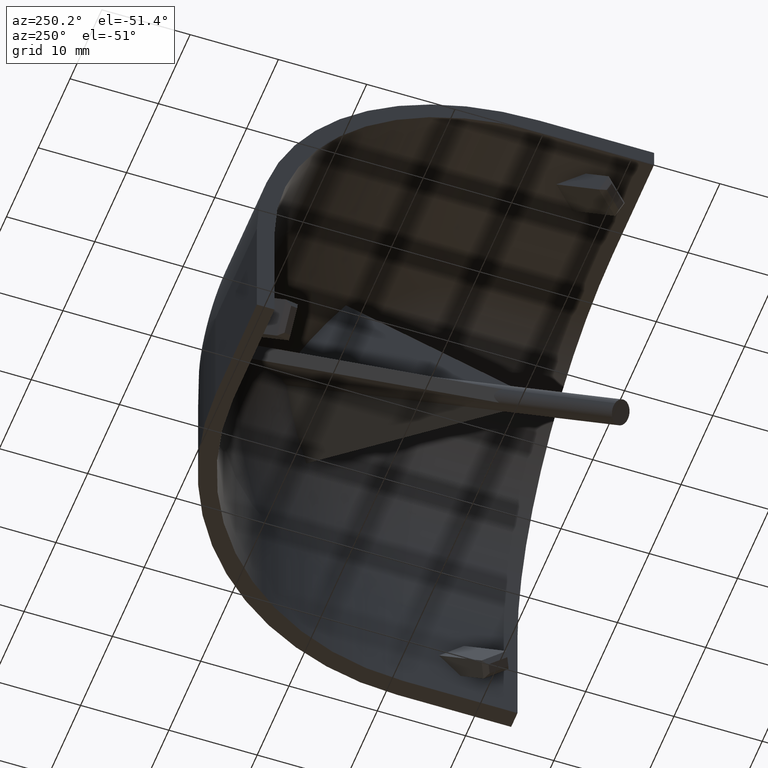
[diagram: clean part render]
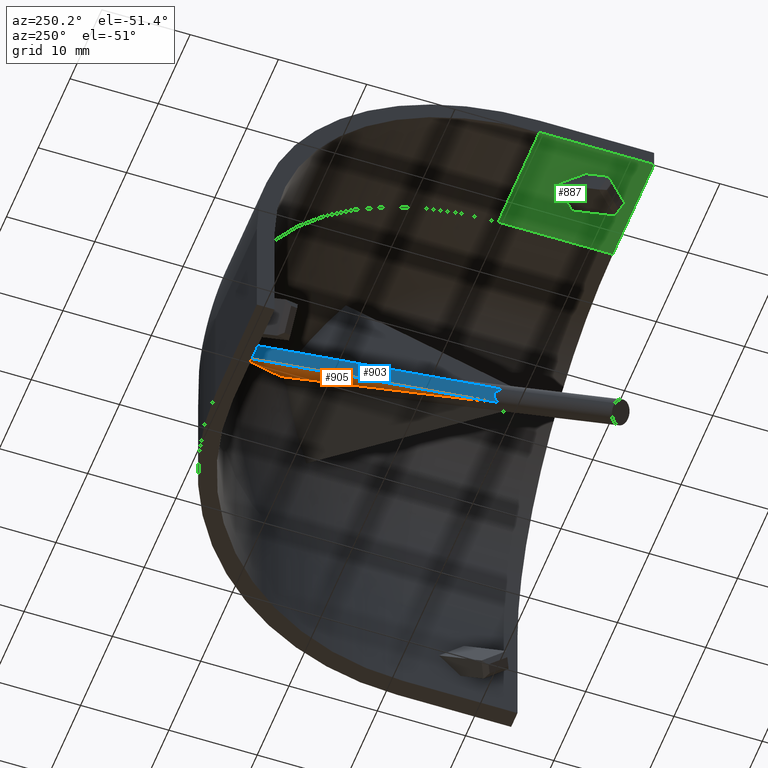
[diagram: same view with three faces highlighted in distinct colors, each labeled with its STEP entity id]
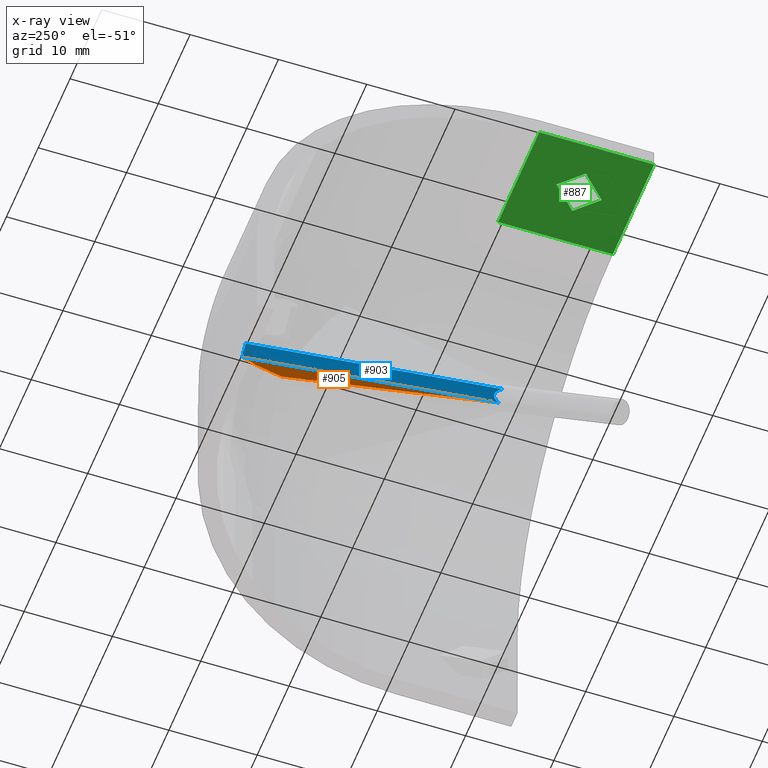
[diagram: x-ray of the same camera — body ghosted, the three highlighted faces saturated]
A machine part, auxiliary view with three faces highlighted in distinct colors.
The next image is the same camera in x-ray (body ghosted, the three faces saturated) — at least one of them is partly hidden behind the body in this view.
Their STEP definitions:

[orange] entity #905 — the highlighted planar face has unit normal (-0.7071, -0, 0.7071).
#35=PLANE($,#991);
#70=LINE($,#1300,#169);
#119=LINE($,#1451,#218);
#169=VECTOR($,#1029,31.3487743008794);
#218=VECTOR($,#1180,30.9555790635604);
#298=FACE_OUTER_BOUND($,#358,.T.);
#358=EDGE_LOOP($,(#760,#761,#762));
#401=CIRCLE($,#956,29.9906235346983);
#412=VERTEX_POINT($,#1296);
#414=VERTEX_POINT($,#1299);
#427=VERTEX_POINT($,#1327);
#492=EDGE_CURVE($,#412,#414,#70,.T.);
#514=EDGE_CURVE($,#427,#414,#401,.T.);
#567=EDGE_CURVE($,#412,#427,#119,.T.);
#760=ORIENTED_EDGE($,*,*,#567,.T.);
#761=ORIENTED_EDGE($,*,*,#514,.T.);
#762=ORIENTED_EDGE($,*,*,#492,.F.);
#905=ADVANCED_FACE($,(#298),#35,.F.);
#956=AXIS2_PLACEMENT_3D($,#1341,#1069,#1070);
#991=AXIS2_PLACEMENT_3D($,#1454,#1184,#1185);
#1029=DIRECTION($,(0.577350269189624,0.577350269189624,-0.57735026918963));
#1069=DIRECTION('center_axis',(0.707106781186543,-0.707106781186552,-1.30843890190042E-015));
#1070=DIRECTION('ref_axis',(-0.707106781186552,-0.707106781186543,3.52837385698756E-015));
#1180=DIRECTION($,(0.442898768224957,0.442898768224954,-0.779539198635729));
#1184=DIRECTION('center_axis',(-0.707106781186543,0.707106781186552,1.30843890190042E-015));
#1185=DIRECTION('ref_axis',(2.1316282072803E-015,0.,1.));
#1296=CARTESIAN_POINT('',(12.2501300915973,11.1894699023155,-13.1676432237397));
#1299=CARTESIAN_POINT('',(30.3493533652992,29.2886931935193,-31.2668665029666));
#1300=CARTESIAN_POINT($,(12.2501300768897,11.1894699051098,-13.1676432145569));
#1327=CARTESIAN_POINT('',(25.9603179193382,24.8996577475581,-37.298730520763));
#1341=CARTESIAN_POINT('Origin',(13.53033008589,12.46966991411,-13.));
#1451=CARTESIAN_POINT($,(12.2501300768897,11.1894699051098,-13.1676432145569));
#1454=CARTESIAN_POINT('Origin',(43.8326876228925,42.7720274511119,-29.7397525875473));

[blue] entity #903 — the highlighted planar face has unit normal (-0.5512, 0.6264, -0.5512).
#33=PLANE($,#989);
#119=LINE($,#1451,#218);
#120=LINE($,#1452,#219);
#218=VECTOR($,#1180,30.9555790635604);
#219=VECTOR($,#1181,30.955579075995);
#268=ELLIPSE($,#938,5.09339588938347,1.40000009909664);
#296=FACE_OUTER_BOUND($,#356,.T.);
#356=EDGE_LOOP($,(#753,#754,#755,#756));
#393=CIRCLE($,#948,29.9616539883931);
#412=VERTEX_POINT($,#1296);
#413=VERTEX_POINT($,#1297);
#427=VERTEX_POINT($,#1327);
#428=VERTEX_POINT($,#1328);
#491=EDGE_CURVE($,#412,#413,#268,.T.);
#506=EDGE_CURVE($,#427,#428,#393,.T.);
#567=EDGE_CURVE($,#412,#427,#119,.T.);
#568=EDGE_CURVE($,#413,#428,#120,.T.);
#753=ORIENTED_EDGE($,*,*,#506,.F.);
#754=ORIENTED_EDGE($,*,*,#567,.F.);
#755=ORIENTED_EDGE($,*,*,#491,.T.);
#756=ORIENTED_EDGE($,*,*,#568,.T.);
#903=ADVANCED_FACE($,(#296),#33,.T.);
#938=AXIS2_PLACEMENT_3D($,#1298,#1027,#1028);
#948=AXIS2_PLACEMENT_3D($,#1329,#1053,#1054);
#989=AXIS2_PLACEMENT_3D($,#1450,#1178,#1179);
#1027=DIRECTION('center_axis',(0.551217453555649,0.551217453556672,0.626353444781877));
#1028=DIRECTION('ref_axis',(-0.442898757804549,-0.44289877864509,0.779539198635884));
#1053=DIRECTION('center_axis',(0.551217453556055,0.551217453556047,0.626353444782071));
#1054=DIRECTION('ref_axis',(-0.750697811457472,-9.17961462769757E-017,0.660645741583915));
#1178=DIRECTION('center_axis',(-0.551217453556055,-0.551217453556047,-0.626353444782071));
#1179=DIRECTION('ref_axis',(-0.750697811457473,0.,0.660645741583915));
#1180=DIRECTION($,(0.442898768224957,0.442898768224954,-0.779539198635729));
#1181=DIRECTION($,(0.442898768224958,0.442898768224954,-0.779539198635729));
#1296=CARTESIAN_POINT('',(12.2501300915973,11.1894699023155,-13.1676432237397));
#1297=CARTESIAN_POINT('',(11.1894699051099,12.2501300768897,-13.167643214557));
#1298=CARTESIAN_POINT('Origin',(9.81495442009279,9.81495430496123,-9.81495420009717));
#1327=CARTESIAN_POINT('',(25.9603179193382,24.8996577475581,-37.298730520763));
#1328=CARTESIAN_POINT('',(24.8996577475584,25.960317919338,-37.298730520763));
#1329=CARTESIAN_POINT('Origin',(12.1641663295399,12.1641663295399,-13.9497654607635));
#1450=CARTESIAN_POINT('Origin',(29.3015318109112,30.3621919826907,-45.0464002503355));
#1451=CARTESIAN_POINT($,(12.2501300768897,11.1894699051098,-13.1676432145569));
#1452=CARTESIAN_POINT($,(11.1894699051099,12.2501300768896,-13.167643214557));

[green] entity #887 — the highlighted planar face has unit normal (0, 0, -1).
#22=PLANE($,#971);
#68=FACE_BOUND($,#339,.T.);
#81=LINE($,#1358,#180);
#100=LINE($,#1404,#199);
#101=LINE($,#1406,#200);
#102=LINE($,#1407,#201);
#103=LINE($,#1410,#202);
#104=LINE($,#1412,#203);
#105=LINE($,#1414,#204);
#106=LINE($,#1415,#205);
#180=VECTOR($,#1082,13.);
#199=VECTOR($,#1123,13.);
#200=VECTOR($,#1126,12.9999999999998);
#201=VECTOR($,#1127,12.9999999999998);
#202=VECTOR($,#1128,3.99999999981728);
#203=VECTOR($,#1129,3.4641016150962);
#204=VECTOR($,#1130,3.99999999977504);
#205=VECTOR($,#1131,3.46410161502379);
#280=FACE_OUTER_BOUND($,#338,.T.);
#338=EDGE_LOOP($,(#685,#686,#687,#688));
#339=EDGE_LOOP($,(#689,#690,#691,#692));
#424=VERTEX_POINT($,#1321);
#434=VERTEX_POINT($,#1344);
#440=VERTEX_POINT($,#1356);
#456=VERTEX_POINT($,#1402);
#457=VERTEX_POINT($,#1408);
#458=VERTEX_POINT($,#1409);
#459=VERTEX_POINT($,#1411);
#460=VERTEX_POINT($,#1413);
#522=EDGE_CURVE($,#440,#434,#81,.T.);
#546=EDGE_CURVE($,#424,#456,#100,.T.);
#547=EDGE_CURVE($,#434,#456,#101,.T.);
#548=EDGE_CURVE($,#440,#424,#102,.T.);
#549=EDGE_CURVE($,#457,#458,#103,.T.);
#550=EDGE_CURVE($,#458,#459,#104,.T.);
#551=EDGE_CURVE($,#459,#460,#105,.T.);
#552=EDGE_CURVE($,#460,#457,#106,.T.);
#685=ORIENTED_EDGE($,*,*,#547,.F.);
#686=ORIENTED_EDGE($,*,*,#522,.F.);
#687=ORIENTED_EDGE($,*,*,#548,.T.);
#688=ORIENTED_EDGE($,*,*,#546,.T.);
#689=ORIENTED_EDGE($,*,*,#549,.T.);
#690=ORIENTED_EDGE($,*,*,#550,.T.);
#691=ORIENTED_EDGE($,*,*,#551,.T.);
#692=ORIENTED_EDGE($,*,*,#552,.T.);
#887=ADVANCED_FACE($,(#280,#68),#22,.T.);
#971=AXIS2_PLACEMENT_3D($,#1405,#1124,#1125);
#1082=DIRECTION($,(0.,0.,1.));
#1123=DIRECTION($,(0.,0.,1.));
#1124=DIRECTION('center_axis',(0.,-1.,0.));
#1125=DIRECTION('ref_axis',(0.,0.,-1.));
#1126=DIRECTION($,(1.,0.,0.));
#1127=DIRECTION($,(1.,0.,0.));
#1128=DIRECTION($,(-0.707106781186556,0.,-0.707106781186539));
#1129=DIRECTION($,(-0.707106781186547,0.,0.707106781186548));
#1130=DIRECTION($,(0.707106781186555,0.,0.70710678118654));
#1131=DIRECTION($,(0.707106781186548,0.,-0.707106781186547));
#1321=CARTESIAN_POINT('',(12.9999999999998,43.,-13.));
#1344=CARTESIAN_POINT('',(0.,43.,0.));
#1356=CARTESIAN_POINT('',(0.,43.,-13.));
#1358=CARTESIAN_POINT($,(0.,43.,-13.));
#1402=CARTESIAN_POINT('',(12.9999999999998,43.,0.));
#1404=CARTESIAN_POINT($,(12.9999999999998,43.,-13.));
#1405=CARTESIAN_POINT('Origin',(0.,43.,-13.));
#1406=CARTESIAN_POINT($,(0.,43.,0.));
#1407=CARTESIAN_POINT($,(0.,43.,-13.));
#1408=CARTESIAN_POINT('',(8.89906177938035,42.9999999994168,-6.06940991525163));
#1409=CARTESIAN_POINT('',(6.07063465480166,42.9999999993869,-8.89783703990691));
#1410=CARTESIAN_POINT($,(8.89906178184472,43.0000000000064,-6.06940991213125));
#1411=CARTESIAN_POINT('',(3.62114491204864,42.9999999993877,-6.44834729715234));
#1412=CARTESIAN_POINT($,(6.07063465373358,43.0000000000064,-8.89783703995636));
#1413=CARTESIAN_POINT('',(6.44957203664867,42.9999999993398,-3.61992017257813));
#1414=CARTESIAN_POINT($,(3.62114491426266,42.9999999999495,-6.44834729413898));
#1415=CARTESIAN_POINT($,(6.44957203540253,42.9999999999496,-3.61992017290322));